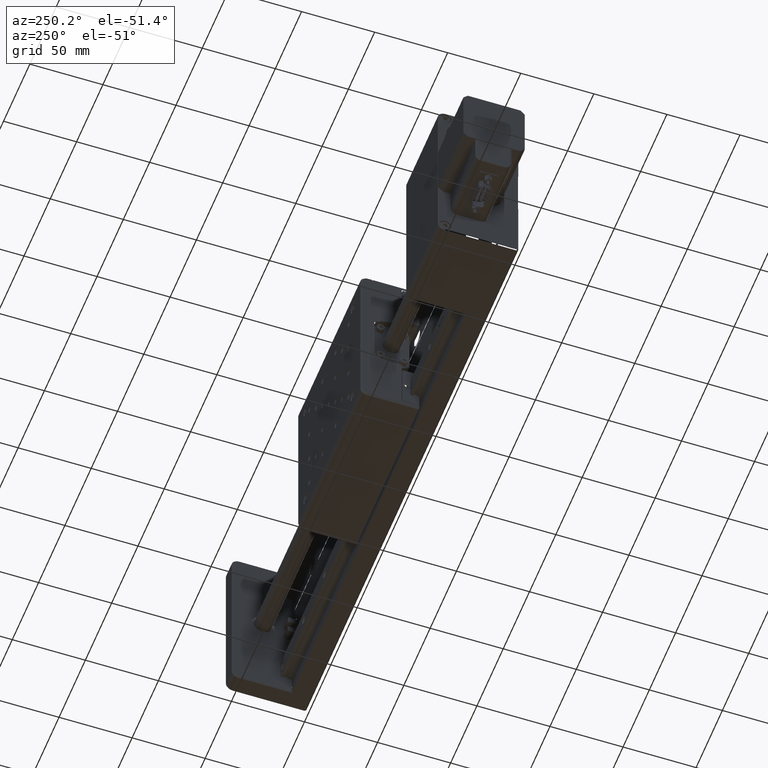
[diagram: clean part render]
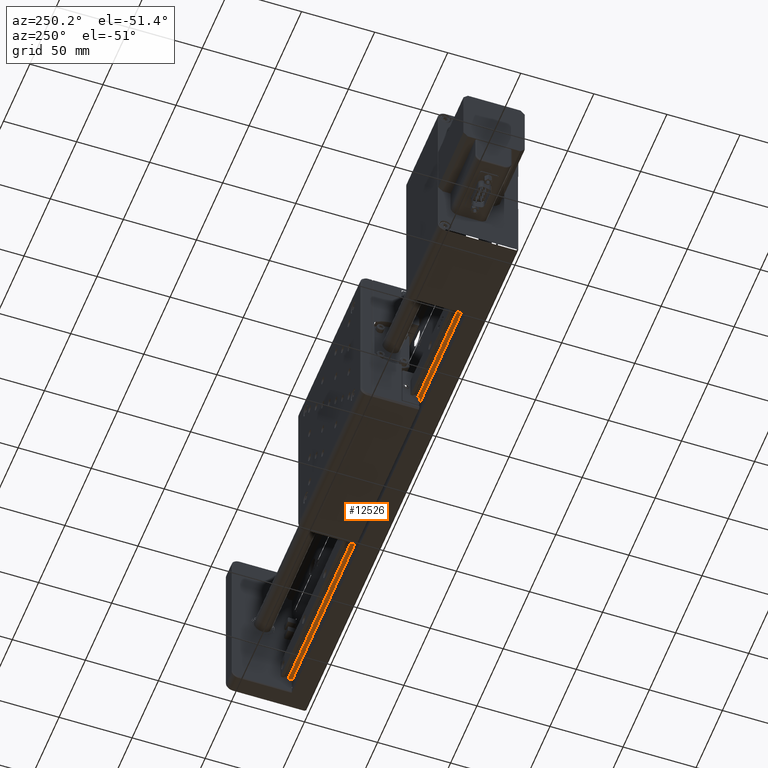
[diagram: same view with one face highlighted and labeled with its STEP entity id]
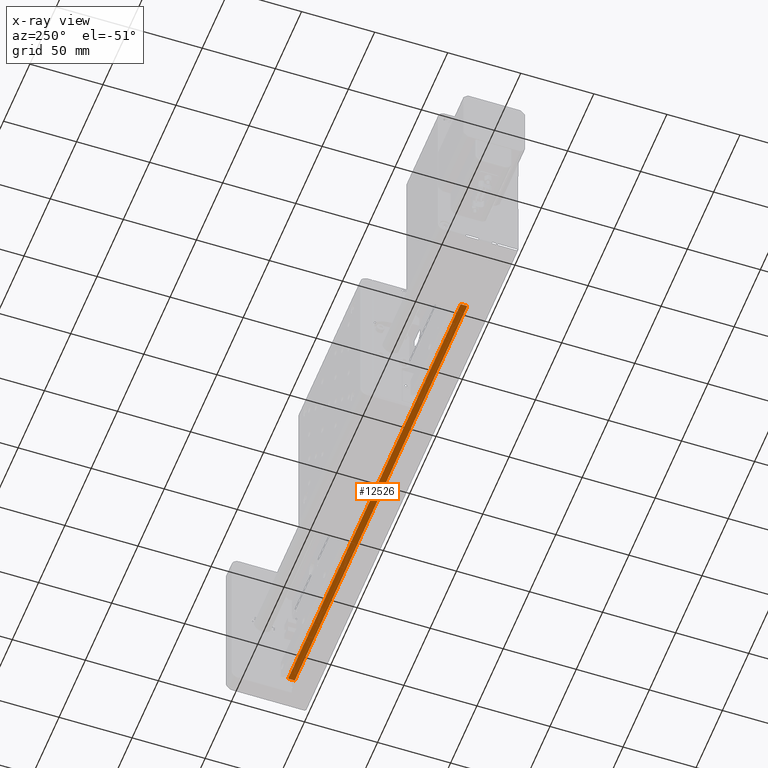
[diagram: x-ray of the same camera — body ghosted, the highlighted face saturated]
A machine part, auxiliary view. The second image highlights one B-rep face of the part: STEP entity #12526.
The next image is the same camera in x-ray: the body ghosted, the highlighted face saturated — about 0% of this face is hidden behind the body in this view.
In plain terms, the highlighted planar face has unit normal (-0, -0, 1).
Its self-contained STEP definition (entity closure, byte-faithful):
#724 = DIRECTION ( 'NONE',  ( 1.000000000000000000, 1.680461114096665000E-019, 9.897115008264711900E-017 ) ) ;
#1579 = CARTESIAN_POINT ( 'NONE',  ( -114.0094527814098900, 16.99999999999561200, -255.9944050297567900 ) ) ;
#3593 = VECTOR ( 'NONE', #19321, 1000.000000000000000 ) ;
#7046 = EDGE_CURVE ( 'NONE', #15006, #22249, #31424, .T. ) ;
#7722 = ORIENTED_EDGE ( 'NONE', *, *, #39239, .F. ) ;
#8106 = ORIENTED_EDGE ( 'NONE', *, *, #7046, .T. ) ;
#8604 = CARTESIAN_POINT ( 'NONE',  ( -114.0094527814098900, 16.99999999999561600, -255.9944050297567900 ) ) ;
#11849 = FACE_OUTER_BOUND ( 'NONE', #22646, .T. ) ;
#12526 = ADVANCED_FACE ( 'NONE', ( #11849 ), #28056, .F. ) ;
#12682 = CARTESIAN_POINT ( 'NONE',  ( -43.90945278140989700, 11.99999999999561200, -255.9944050297567900 ) ) ;
#14068 = CARTESIAN_POINT ( 'NONE',  ( -114.0094527814098900, 12.39999999999561500, -255.9944050297567900 ) ) ;
#14652 = ORIENTED_EDGE ( 'NONE', *, *, #24610, .T. ) ;
#14742 = DIRECTION ( 'NONE',  ( 1.000000000000000000, 1.680461114096665000E-019, 9.897115008264711900E-017 ) ) ;
#15006 = VERTEX_POINT ( 'NONE', #31942 ) ;
#17261 = EDGE_CURVE ( 'NONE', #31422, #15006, #30087, .T. ) ;
#17373 = VERTEX_POINT ( 'NONE', #31300 ) ;
#17706 = VECTOR ( 'NONE', #41664, 1000.000000000000000 ) ;
#18237 = ORIENTED_EDGE ( 'NONE', *, *, #17261, .T. ) ;
#19321 = DIRECTION ( 'NONE',  ( -1.680461114096699400E-019, 1.000000000000000000, 3.469446951953613600E-017 ) ) ;
#21264 = LINE ( 'NONE', #12682, #3593 ) ;
#21480 = LINE ( 'NONE', #14068, #25614 ) ;
#21609 = VECTOR ( 'NONE', #35681, 1000.000000000000000 ) ;
#22249 = VERTEX_POINT ( 'NONE', #23704 ) ;
#22646 = EDGE_LOOP ( 'NONE', ( #14652, #18237, #8106, #7722 ) ) ;
#23704 = CARTESIAN_POINT ( 'NONE',  ( 284.0905472185902500, 12.39999999999561500, -255.9944050297567300 ) ) ;
#24610 = EDGE_CURVE ( 'NONE', #17373, #31422, #21264, .T. ) ;
#25614 = VECTOR ( 'NONE', #724, 1000.000000000000000 ) ;
#28056 = PLANE ( 'NONE',  #30444 ) ;
#30087 = LINE ( 'NONE', #8604, #17706 ) ;
#30444 = AXIS2_PLACEMENT_3D ( 'NONE', #1579, #31557, #14742 ) ;
#31300 = CARTESIAN_POINT ( 'NONE',  ( -43.90945278140989000, 12.39999999999561500, -255.9944050297567900 ) ) ;
#31422 = VERTEX_POINT ( 'NONE', #36636 ) ;
#31424 = LINE ( 'NONE', #32516, #21609 ) ;
#31557 = DIRECTION ( 'NONE',  ( -9.897115008264711900E-017, -3.469446951953613600E-017, 1.000000000000000000 ) ) ;
#31942 = CARTESIAN_POINT ( 'NONE',  ( 284.0905472185901300, 16.99999999999561600, -255.9944050297567300 ) ) ;
#32516 = CARTESIAN_POINT ( 'NONE',  ( 284.0905472185901300, 17.03197352553913300, -255.9944050297567300 ) ) ;
#35681 = DIRECTION ( 'NONE',  ( 1.680461114096699400E-019, -1.000000000000000000, -3.469446951953613600E-017 ) ) ;
#36636 = CARTESIAN_POINT ( 'NONE',  ( -43.90945278140990400, 16.99999999999561600, -255.9944050297567900 ) ) ;
#39239 = EDGE_CURVE ( 'NONE', #17373, #22249, #21480, .T. ) ;
#41664 = DIRECTION ( 'NONE',  ( 1.000000000000000000, 1.680461114096665000E-019, 9.897115008264711900E-017 ) ) ;